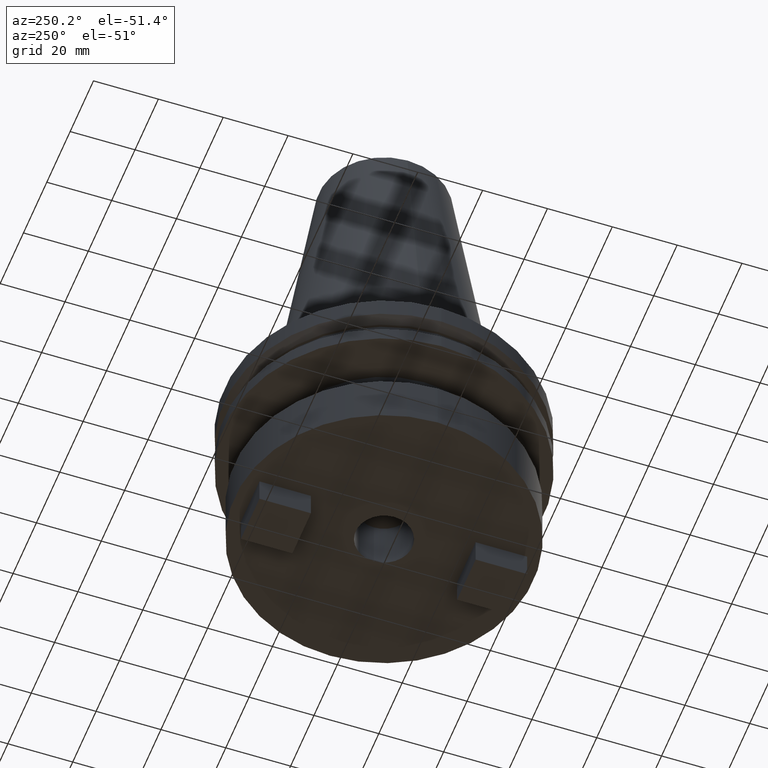
[diagram: clean part render]
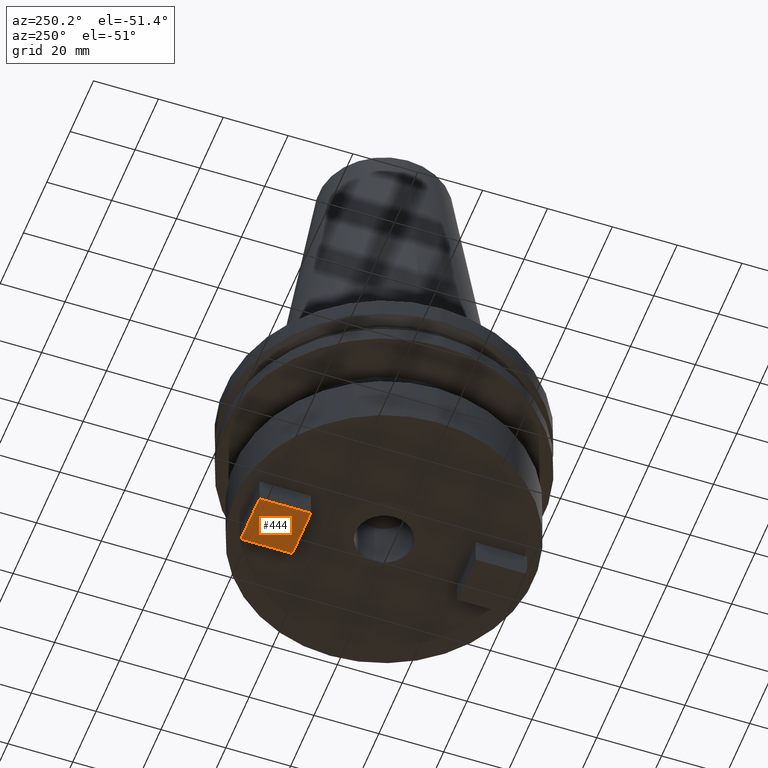
[diagram: same view with one face highlighted and labeled with its STEP entity id]
A machine part, auxiliary view. The second image highlights one B-rep face of the part: STEP entity #444.
In plain terms, the highlighted planar face has unit normal (0, 0, -1).
Its self-contained STEP definition (entity closure, byte-faithful):
#6 = CARTESIAN_POINT ( 'NONE',  ( 7.937500000000025757, 25.40250000000002117, -58.88000000000001677 ) ) ;
#15 = EDGE_LOOP ( 'NONE', ( #161, #793, #152, #269 ) ) ;
#38 = VECTOR ( 'NONE', #164, 1000.000000000000000 ) ;
#50 = VERTEX_POINT ( 'NONE', #1018 ) ;
#68 = CARTESIAN_POINT ( 'NONE',  ( -7.937499999999970690, 41.27750000000002473, -58.88000000000001677 ) ) ;
#152 = ORIENTED_EDGE ( 'NONE', *, *, #939, .T. ) ;
#161 = ORIENTED_EDGE ( 'NONE', *, *, #759, .T. ) ;
#164 = DIRECTION ( 'NONE',  ( -1.000000000000000000, -2.185478394931410575E-16, 0.000000000000000000 ) ) ;
#215 = CARTESIAN_POINT ( 'NONE',  ( 7.937500000000025757, 41.27750000000002473, -58.88000000000001677 ) ) ;
#247 = LINE ( 'NONE', #6, #38 ) ;
#254 = DIRECTION ( 'NONE',  ( 0.000000000000000000, 0.000000000000000000, -1.000000000000000000 ) ) ;
#269 = ORIENTED_EDGE ( 'NONE', *, *, #983, .T. ) ;
#328 = CARTESIAN_POINT ( 'NONE',  ( 7.937500000000025757, 41.27750000000002473, -58.88000000000001677 ) ) ;
#339 = PLANE ( 'NONE',  #788 ) ;
#381 = VECTOR ( 'NONE', #1042, 1000.000000000000000 ) ;
#397 = VERTEX_POINT ( 'NONE', #328 ) ;
#429 = VERTEX_POINT ( 'NONE', #919 ) ;
#430 = LINE ( 'NONE', #921, #1072 ) ;
#444 = ADVANCED_FACE ( 'NONE', ( #573 ), #339, .T. ) ;
#501 = DIRECTION ( 'NONE',  ( 0.000000000000000000, -1.000000000000000000, 0.000000000000000000 ) ) ;
#512 = EDGE_CURVE ( 'NONE', #1080, #397, #708, .T. ) ;
#573 = FACE_OUTER_BOUND ( 'NONE', #15, .T. ) ;
#590 = DIRECTION ( 'NONE',  ( -1.000000000000000000, 0.000000000000000000, -0.000000000000000000 ) ) ;
#679 = CARTESIAN_POINT ( 'NONE',  ( 0.000000000000000000, 0.000000000000000000, -58.88000000000001677 ) ) ;
#708 = LINE ( 'NONE', #215, #381 ) ;
#730 = DIRECTION ( 'NONE',  ( 1.092739197465705041E-16, 1.000000000000000000, -0.000000000000000000 ) ) ;
#759 = EDGE_CURVE ( 'NONE', #50, #1080, #1066, .T. ) ;
#778 = CARTESIAN_POINT ( 'NONE',  ( -7.937499999999970690, 41.27750000000002473, -58.88000000000001677 ) ) ;
#788 = AXIS2_PLACEMENT_3D ( 'NONE', #679, #254, #590 ) ;
#793 = ORIENTED_EDGE ( 'NONE', *, *, #512, .T. ) ;
#879 = VECTOR ( 'NONE', #730, 1000.000000000000000 ) ;
#919 = CARTESIAN_POINT ( 'NONE',  ( 7.937500000000025757, 25.40250000000002117, -58.88000000000001677 ) ) ;
#921 = CARTESIAN_POINT ( 'NONE',  ( 7.937500000000025757, 41.27750000000002473, -58.88000000000001677 ) ) ;
#939 = EDGE_CURVE ( 'NONE', #397, #429, #430, .T. ) ;
#983 = EDGE_CURVE ( 'NONE', #429, #50, #247, .T. ) ;
#1018 = CARTESIAN_POINT ( 'NONE',  ( -7.937499999999972466, 25.40250000000001762, -58.88000000000001677 ) ) ;
#1042 = DIRECTION ( 'NONE',  ( 1.000000000000000000, -0.000000000000000000, -0.000000000000000000 ) ) ;
#1066 = LINE ( 'NONE', #68, #879 ) ;
#1072 = VECTOR ( 'NONE', #501, 1000.000000000000000 ) ;
#1080 = VERTEX_POINT ( 'NONE', #778 ) ;